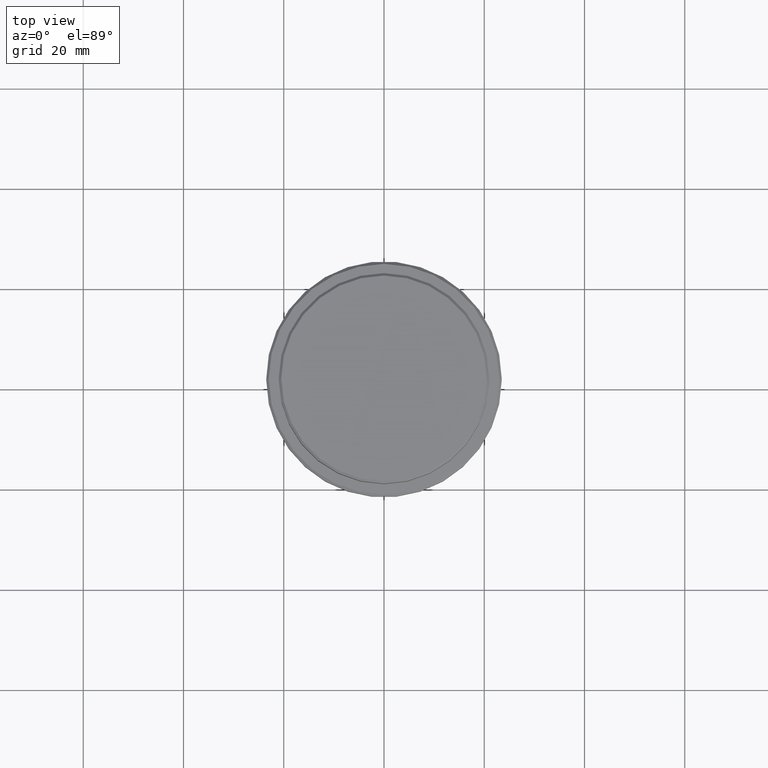
[diagram: clean part render]
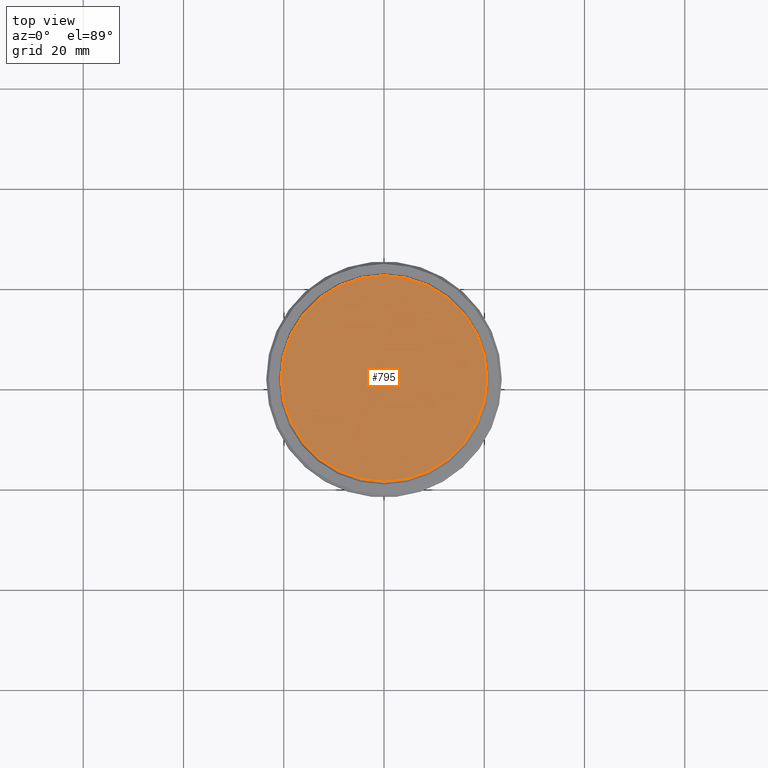
[diagram: same view with one face highlighted and labeled with its STEP entity id]
A machine part, top view. The second image highlights one B-rep face of the part: STEP entity #795.
In plain terms, the highlighted planar face has unit normal (0, -0, 1).
Its self-contained STEP definition (entity closure, byte-faithful):
#26 = CARTESIAN_POINT ( 'NONE',  ( 0.000000000000000000, 0.000000000000000000, 0.000000000000000000 ) ) ;
#214 = CIRCLE ( 'NONE', #326, 20.49999999999997513 ) ;
#326 = AXIS2_PLACEMENT_3D ( 'NONE', #26, #456, #1005 ) ;
#341 = ORIENTED_EDGE ( 'NONE', *, *, #1160, .T. ) ;
#378 = EDGE_LOOP ( 'NONE', ( #944, #341 ) ) ;
#456 = DIRECTION ( 'NONE',  ( -0.000000000000000000, -0.000000000000000000, 1.000000000000000000 ) ) ;
#467 = CARTESIAN_POINT ( 'NONE',  ( 0.000000000000000000, 0.000000000000000000, 0.000000000000000000 ) ) ;
#485 = EDGE_CURVE ( 'NONE', #851, #873, #1154, .T. ) ;
#735 = AXIS2_PLACEMENT_3D ( 'NONE', #867, #1394, #844 ) ;
#795 = ADVANCED_FACE ( 'NONE', ( #979 ), #1414, .T. ) ;
#834 = AXIS2_PLACEMENT_3D ( 'NONE', #467, #1344, #1135 ) ;
#844 = DIRECTION ( 'NONE',  ( 1.000000000000000000, 0.000000000000000000, 0.000000000000000000 ) ) ;
#851 = VERTEX_POINT ( 'NONE', #1254 ) ;
#867 = CARTESIAN_POINT ( 'NONE',  ( 0.000000000000000000, 0.000000000000000000, 0.000000000000000000 ) ) ;
#873 = VERTEX_POINT ( 'NONE', #1030 ) ;
#944 = ORIENTED_EDGE ( 'NONE', *, *, #485, .T. ) ;
#979 = FACE_OUTER_BOUND ( 'NONE', #378, .T. ) ;
#1005 = DIRECTION ( 'NONE',  ( 1.000000000000000000, 0.000000000000000000, 0.000000000000000000 ) ) ;
#1030 = CARTESIAN_POINT ( 'NONE',  ( 20.49999999999997513, 2.541142108230756296E-15, 0.000000000000000000 ) ) ;
#1135 = DIRECTION ( 'NONE',  ( 1.000000000000000000, 0.000000000000000000, 0.000000000000000000 ) ) ;
#1154 = CIRCLE ( 'NONE', #834, 20.49999999999997513 ) ;
#1160 = EDGE_CURVE ( 'NONE', #873, #851, #214, .T. ) ;
#1254 = CARTESIAN_POINT ( 'NONE',  ( -20.49999999999997513, 0.000000000000000000, 0.000000000000000000 ) ) ;
#1344 = DIRECTION ( 'NONE',  ( -0.000000000000000000, -0.000000000000000000, 1.000000000000000000 ) ) ;
#1394 = DIRECTION ( 'NONE',  ( 0.000000000000000000, -0.000000000000000000, 1.000000000000000000 ) ) ;
#1414 = PLANE ( 'NONE',  #735 ) ;